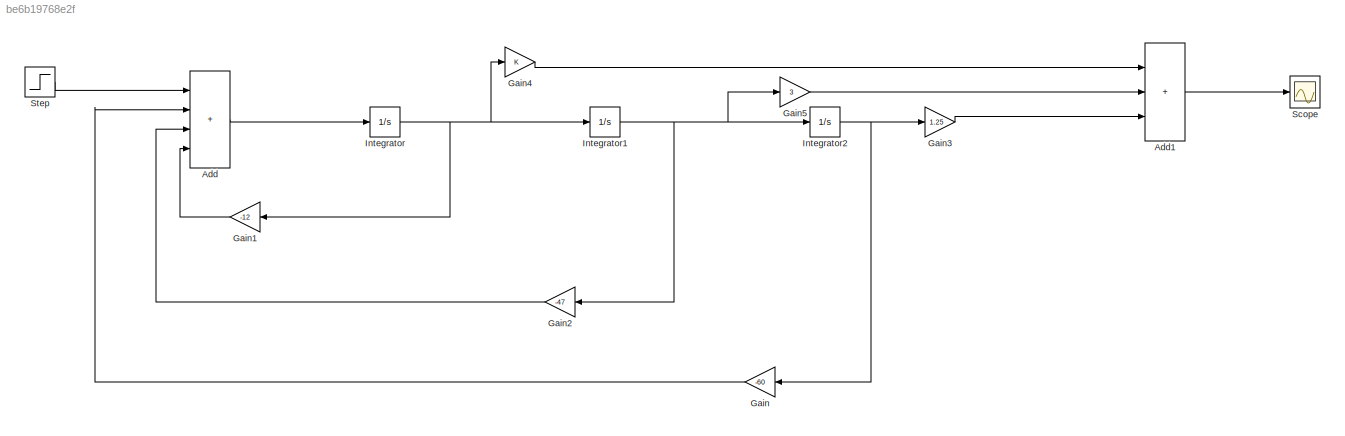
MODEL slx_be6b19768e2f
KIND model
CONFIG AbsTol = auto
CONFIG EnableMultiTasking = off
CONFIG FixedStep = auto
CONFIG MaxStep = auto
CONFIG MinStep = auto
CONFIG RelTol = 1e-3
CONFIG SampleTimeConstraint = Unconstrained
CONFIG SolverName = VariableStepAuto
CONFIG StartTime = 0.0
CONFIG StopTime = 10.0
BLOCK [Sum] Add
  IconShape = rectangular
  Inputs = ++++
BLOCK [Sum] Add1
  IconShape = rectangular
  Inputs = +++
BLOCK [Gain] Gain
  Gain = -60
  NameLocation = top
BLOCK [Gain] Gain1
  Gain = -12
  NameLocation = top
BLOCK [Gain] Gain2
  Gain = -47
  NameLocation = top
BLOCK [Gain] Gain3
  Gain = 1.25
BLOCK [Gain] Gain4
BLOCK [Gain] Gain5
  Gain = 3
BLOCK [Integrator] Integrator
BLOCK [Integrator] Integrator1
BLOCK [Integrator] Integrator2
BLOCK [Scope] Scope
  Floating = off
  NumInputPorts = 1
  ScopeSpecificationString = Simulink.scopes.TimeScopeBlockCfg('CurrentConfiguration', extmgr.ConfigurationSet(extmgr.Configuration('Core','General UI',true),extmgr.Configuration('Core','Source UI',true),extmgr.Configuration('Sources','WiredSimulink',true),extmgr.Configuration('Visuals','Time Domain',true,'SerializedDisplays',{struct('MinYLimReal','-0.01039','MaxYLimReal','0.09355','YLabelReal','','MinYLimMag','0.00000','MaxY...<+1352ch>
BLOCK [Step] Step
  SampleTime = 0
LINE Add1:1 -> Scope:1
LINE Add:1 -> Integrator:1
LINE Gain1:1 -> Add:4
LINE Gain2:1 -> Add:3
LINE Gain3:1 -> Add1:3
LINE Gain4:1 -> Add1:1
LINE Gain5:1 -> Add1:2
LINE Gain:1 -> Add:2
NET Integrator1:1 -> Gain2:1, Gain5:1, Integrator2:1
NET Integrator2:1 -> Gain3:1, Gain:1
NET Integrator:1 -> Gain1:1, Gain4:1, Integrator1:1
LINE Step:1 -> Add:1
note: NET lines group one-source signal fan-out (src -> all destinations, sorted); 1:1 wires keep LINE
